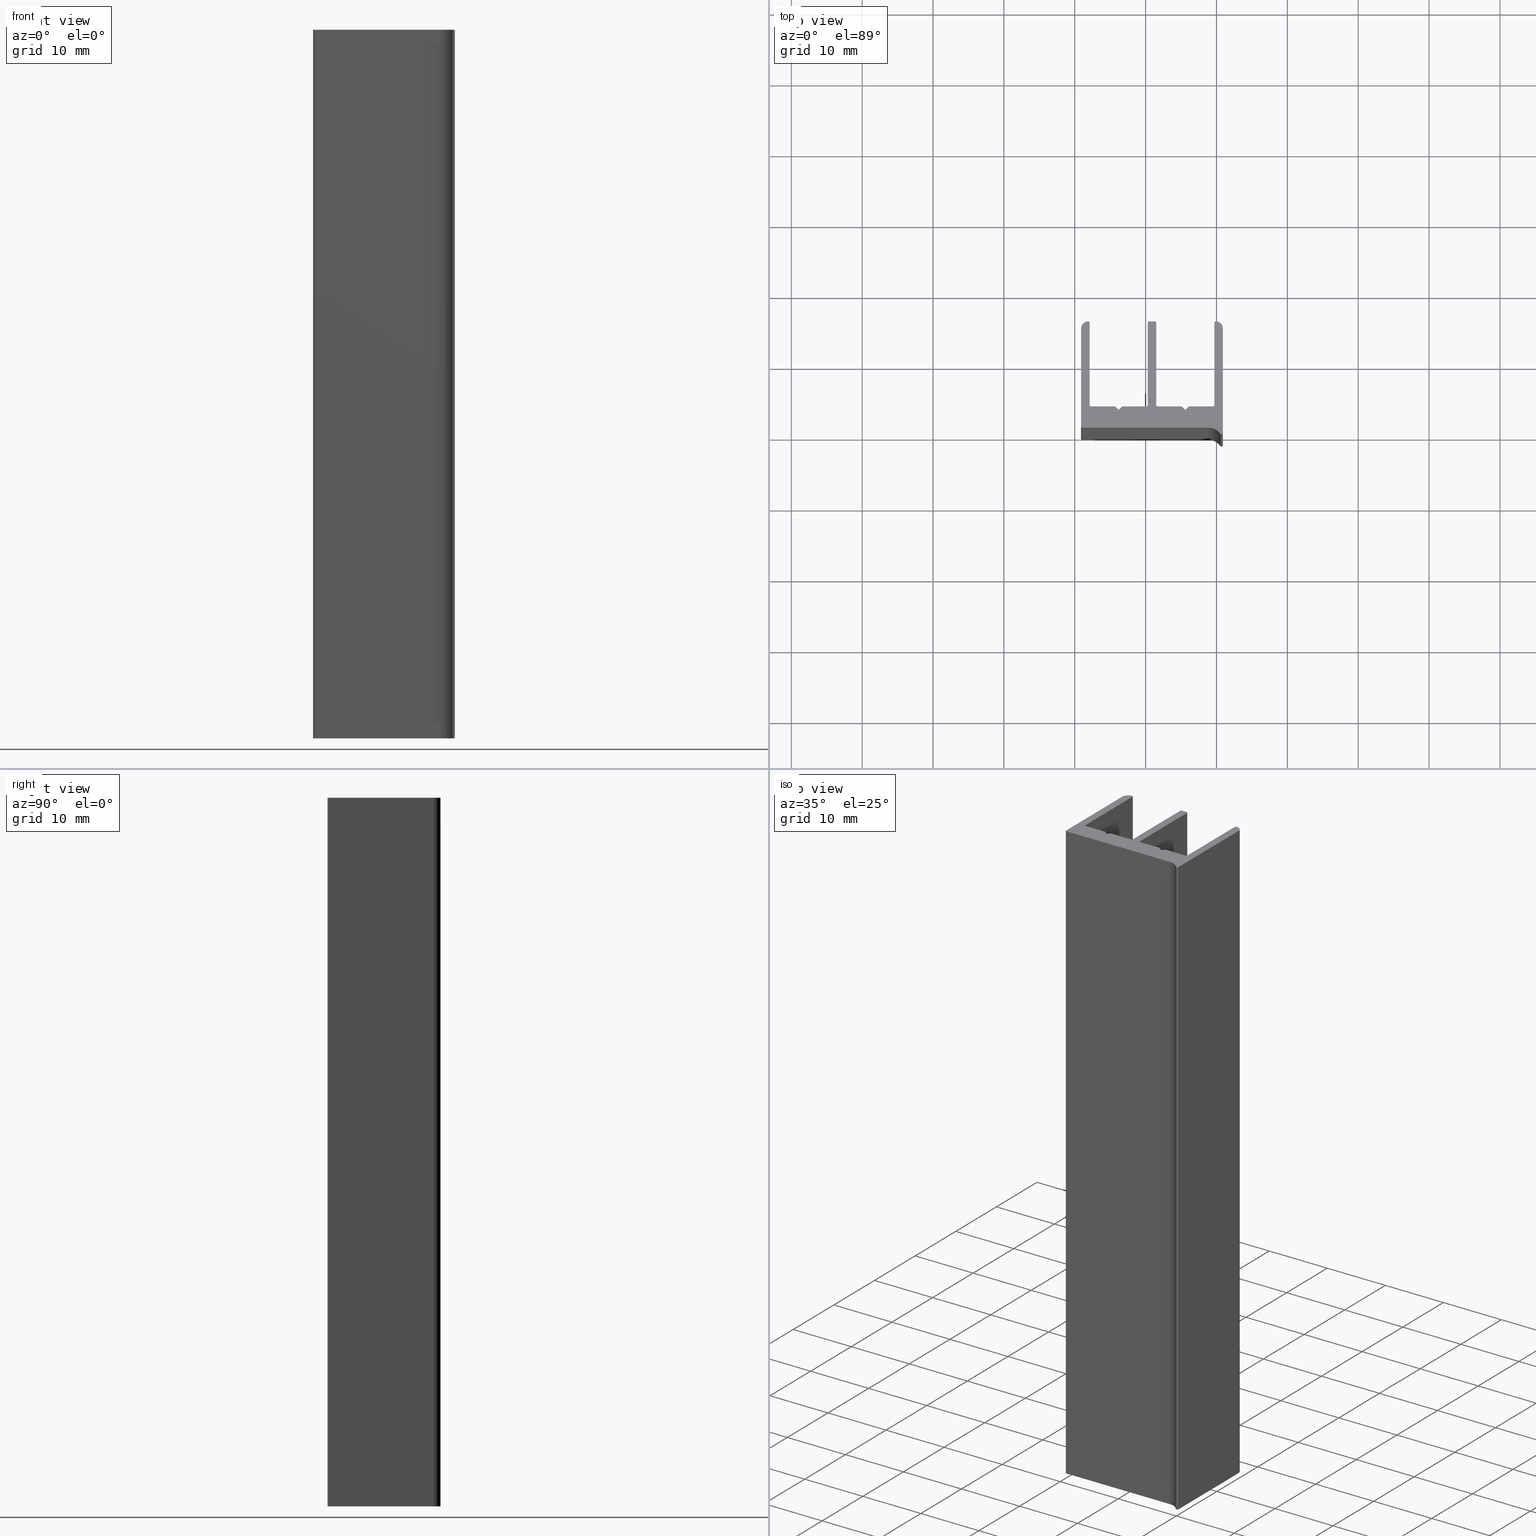
[diagram: canonical four-view strip — front | top / right | iso, engineering-drawing reading convention]
A machine part, canonical four-view strip (front | top / right | iso — engineering-drawing reading convention). The complete STEP part file that produces these views, byte-faithful:
ISO-10303-21;
HEADER;
/****************************************************************
 * Generated by software with PDE/Lib inside                    *
 * PDElib Version v4.4, created Mon 02/23/2004                  *
 * International Technegroup Inc. (www.iti-oh.com)              *
 ****************************************************************/
FILE_DESCRIPTION(('STEP AP203'),'2;1');
FILE_NAME('XB26521.stp','2011-03-21T16:29:15',(''),(''),'2009.3.110','THINKDESIGN','');
FILE_SCHEMA(('CONFIG_CONTROL_DESIGN'));
ENDSEC;
DATA;
#2=CARTESIAN_POINT('',(9.899999999999864,14.800000000000068,-100.0));
#3=DIRECTION('',(0.0,0.0,1.0));
#4=DIRECTION('',(1.0,0.0,0.0));
#5=AXIS2_PLACEMENT_3D('',#2,#3,#4);
#6=CYLINDRICAL_SURFACE('',#5,0.200000000000000);
#7=CARTESIAN_POINT('',(9.899999999999864,15.000000000000114,-100.0));
#8=VERTEX_POINT('',#7);
#9=CARTESIAN_POINT('',(9.699999999999818,14.800000000000068,-100.0));
#10=VERTEX_POINT('',#9);
#11=CARTESIAN_POINT('',(9.899999999999864,14.800000000000068,-100.0));
#12=DIRECTION('',(0.0,0.0,1.0));
#13=DIRECTION('',(1.0,0.0,0.0));
#14=AXIS2_PLACEMENT_3D('',#11,#12,#13);
#15=CIRCLE('',#14,0.200000000000000);
#16=EDGE_CURVE('',#8,#10,#15,.T.);
#17=ORIENTED_EDGE('',*,*,#16,.T.);
#18=CARTESIAN_POINT('',(9.699999999999818,14.800000000000068,0.0));
#19=VERTEX_POINT('',#18);
#20=CARTESIAN_POINT('',(9.699999999999818,14.800000000000068,-100.0));
#21=DIRECTION('',(0.0,0.0,1.0));
#22=VECTOR('',#21,100.0);
#23=LINE('',#20,#22);
#24=EDGE_CURVE('',#10,#19,#23,.T.);
#25=ORIENTED_EDGE('',*,*,#24,.T.);
#26=CARTESIAN_POINT('',(9.899999999999864,15.000000000000114,0.0));
#27=VERTEX_POINT('',#26);
#28=CARTESIAN_POINT('',(9.899999999999864,14.800000000000068,0.0));
#29=DIRECTION('',(0.0,0.0,1.0));
#30=DIRECTION('',(1.0,0.0,0.0));
#31=AXIS2_PLACEMENT_3D('',#28,#29,#30);
#32=CIRCLE('',#31,0.200000000000000);
#33=EDGE_CURVE('',#27,#19,#32,.T.);
#34=ORIENTED_EDGE('',*,*,#33,.F.);
#35=CARTESIAN_POINT('',(9.899999999999864,15.000000000000114,-100.0));
#36=DIRECTION('',(0.0,0.0,1.0));
#37=VECTOR('',#36,100.0);
#38=LINE('',#35,#37);
#39=EDGE_CURVE('',#8,#27,#38,.T.);
#40=ORIENTED_EDGE('',*,*,#39,.F.);
#41=EDGE_LOOP('',(#17,#25,#34,#40));
#42=FACE_OUTER_BOUND('',#41,.T.);
#43=ADVANCED_FACE('',(#42),#6,.T.);
#44=CARTESIAN_POINT('',(9.699999999999818,14.800000000000068,-100.0));
#45=DIRECTION('',(-1.0,0.0,0.0));
#46=DIRECTION('',(0.0,-1.0,0.0));
#47=AXIS2_PLACEMENT_3D('',#44,#45,#46);
#48=PLANE('',#47);
#49=CARTESIAN_POINT('',(9.699999999999818,3.200000000000046,-100.0));
#50=VERTEX_POINT('',#49);
#51=CARTESIAN_POINT('',(9.699999999999818,14.800000000000068,-100.0));
#52=DIRECTION('',(0.0,-1.0,0.0));
#53=VECTOR('',#52,11.599999999999909);
#54=LINE('',#51,#53);
#55=EDGE_CURVE('',#10,#50,#54,.T.);
#56=ORIENTED_EDGE('',*,*,#55,.T.);
#57=CARTESIAN_POINT('',(9.699999999999818,3.200000000000046,0.0));
#58=VERTEX_POINT('',#57);
#59=CARTESIAN_POINT('',(9.699999999999818,3.200000000000046,-100.0));
#60=DIRECTION('',(0.0,0.0,1.0));
#61=VECTOR('',#60,100.0);
#62=LINE('',#59,#61);
#63=EDGE_CURVE('',#50,#58,#62,.T.);
#64=ORIENTED_EDGE('',*,*,#63,.T.);
#65=CARTESIAN_POINT('',(9.699999999999818,14.800000000000068,0.0));
#66=DIRECTION('',(0.0,-1.0,0.0));
#67=VECTOR('',#66,11.599999999999909);
#68=LINE('',#65,#67);
#69=EDGE_CURVE('',#19,#58,#68,.T.);
#70=ORIENTED_EDGE('',*,*,#69,.F.);
#71=ORIENTED_EDGE('',*,*,#24,.F.);
#72=EDGE_LOOP('',(#56,#64,#70,#71));
#73=FACE_OUTER_BOUND('',#72,.T.);
#74=ADVANCED_FACE('',(#73),#48,.T.);
#75=CARTESIAN_POINT('',(9.499999999999773,3.200000000000046,-100.0));
#76=DIRECTION('',(0.0,0.0,-1.0));
#77=DIRECTION('',(1.0,0.0,0.0));
#78=AXIS2_PLACEMENT_3D('',#75,#76,#77);
#79=CYLINDRICAL_SURFACE('',#78,0.200000000000000);
#80=CARTESIAN_POINT('',(9.499999999999773,3.000000000000114,-100.0));
#81=VERTEX_POINT('',#80);
#82=CARTESIAN_POINT('',(9.499999999999773,3.200000000000046,-100.0));
#83=DIRECTION('',(0.0,0.0,-1.0));
#84=DIRECTION('',(1.0,0.0,0.0));
#85=AXIS2_PLACEMENT_3D('',#82,#83,#84);
#86=CIRCLE('',#85,0.200000000000000);
#87=EDGE_CURVE('',#50,#81,#86,.T.);
#88=ORIENTED_EDGE('',*,*,#87,.T.);
#89=CARTESIAN_POINT('',(9.499999999999773,3.000000000000114,0.0));
#90=VERTEX_POINT('',#89);
#91=CARTESIAN_POINT('',(9.499999999999773,3.000000000000114,-100.0));
#92=DIRECTION('',(0.0,0.0,1.0));
#93=VECTOR('',#92,100.0);
#94=LINE('',#91,#93);
#95=EDGE_CURVE('',#81,#90,#94,.T.);
#96=ORIENTED_EDGE('',*,*,#95,.T.);
#97=CARTESIAN_POINT('',(9.499999999999773,3.200000000000046,0.0));
#98=DIRECTION('',(0.0,0.0,-1.0));
#99=DIRECTION('',(1.0,0.0,0.0));
#100=AXIS2_PLACEMENT_3D('',#97,#98,#99);
#101=CIRCLE('',#100,0.200000000000000);
#102=EDGE_CURVE('',#58,#90,#101,.T.);
#103=ORIENTED_EDGE('',*,*,#102,.F.);
#104=ORIENTED_EDGE('',*,*,#63,.F.);
#105=EDGE_LOOP('',(#88,#96,#103,#104));
#106=FACE_OUTER_BOUND('',#105,.T.);
#107=ADVANCED_FACE('',(#106),#79,.F.);
#108=CARTESIAN_POINT('',(9.499999999999773,3.000000000000114,-100.0));
#109=DIRECTION('',(0.0,1.0,0.0));
#110=DIRECTION('',(-1.0,0.0,0.0));
#111=AXIS2_PLACEMENT_3D('',#108,#109,#110);
#112=PLANE('',#111);
#113=CARTESIAN_POINT('',(6.099999999999909,3.0,-100.0));
#114=VERTEX_POINT('',#113);
#115=CARTESIAN_POINT('',(9.499999999999773,3.000000000000114,-100.0));
#116=DIRECTION('',(-1.0,0.0,0.0));
#117=VECTOR('',#116,3.399999999999864);
#118=LINE('',#115,#117);
#119=EDGE_CURVE('',#81,#114,#118,.T.);
#120=ORIENTED_EDGE('',*,*,#119,.T.);
#121=CARTESIAN_POINT('',(6.099999999999909,3.0,0.0));
#122=VERTEX_POINT('',#121);
#123=CARTESIAN_POINT('',(6.099999999999909,3.0,-100.0));
#124=DIRECTION('',(0.0,0.0,1.0));
#125=VECTOR('',#124,100.0);
#126=LINE('',#123,#125);
#127=EDGE_CURVE('',#114,#122,#126,.T.);
#128=ORIENTED_EDGE('',*,*,#127,.T.);
#129=CARTESIAN_POINT('',(9.499999999999773,3.000000000000114,0.0));
#130=DIRECTION('',(-1.0,0.0,0.0));
#131=VECTOR('',#130,3.399999999999864);
#132=LINE('',#129,#131);
#133=EDGE_CURVE('',#90,#122,#132,.T.);
#134=ORIENTED_EDGE('',*,*,#133,.F.);
#135=ORIENTED_EDGE('',*,*,#95,.F.);
#136=EDGE_LOOP('',(#120,#128,#134,#135));
#137=FACE_OUTER_BOUND('',#136,.T.);
#138=ADVANCED_FACE('',(#137),#112,.T.);
#139=CARTESIAN_POINT('',(6.099999999999909,3.0,-100.0));
#140=DIRECTION('',(-0.707106781186467,0.707106781186628,0.0));
#141=DIRECTION('',(-0.707106781186628,-0.707106781186467,0.0));
#142=AXIS2_PLACEMENT_3D('',#139,#140,#141);
#143=PLANE('',#142);
#144=CARTESIAN_POINT('',(5.599999999999909,2.500000000000114,-100.0));
#145=VERTEX_POINT('',#144);
#146=CARTESIAN_POINT('',(6.099999999999909,3.0,-100.0));
#147=DIRECTION('',(-0.707106781186628,-0.707106781186467,0.0));
#148=VECTOR('',#147,0.707106781186467);
#149=LINE('',#146,#148);
#150=EDGE_CURVE('',#114,#145,#149,.T.);
#151=ORIENTED_EDGE('',*,*,#150,.T.);
#152=CARTESIAN_POINT('',(5.599999999999909,2.500000000000114,0.0));
#153=VERTEX_POINT('',#152);
#154=CARTESIAN_POINT('',(5.599999999999909,2.500000000000114,-100.0));
#155=DIRECTION('',(0.0,0.0,1.0));
#156=VECTOR('',#155,100.0);
#157=LINE('',#154,#156);
#158=EDGE_CURVE('',#145,#153,#157,.T.);
#159=ORIENTED_EDGE('',*,*,#158,.T.);
#160=CARTESIAN_POINT('',(6.099999999999909,3.0,0.0));
#161=DIRECTION('',(-0.707106781186628,-0.707106781186467,0.0));
#162=VECTOR('',#161,0.707106781186467);
#163=LINE('',#160,#162);
#164=EDGE_CURVE('',#122,#153,#163,.T.);
#165=ORIENTED_EDGE('',*,*,#164,.F.);
#166=ORIENTED_EDGE('',*,*,#127,.F.);
#167=EDGE_LOOP('',(#151,#159,#165,#166));
#168=FACE_OUTER_BOUND('',#167,.T.);
#169=ADVANCED_FACE('',(#168),#143,.T.);
#170=CARTESIAN_POINT('',(5.599999999999909,2.500000000000114,-100.0));
#171=DIRECTION('',(0.707106781186467,0.707106781186628,0.0));
#172=DIRECTION('',(-0.707106781186628,0.707106781186467,0.0));
#173=AXIS2_PLACEMENT_3D('',#170,#171,#172);
#174=PLANE('',#173);
#175=CARTESIAN_POINT('',(5.099999999999909,3.0,-100.0));
#176=VERTEX_POINT('',#175);
#177=CARTESIAN_POINT('',(5.599999999999909,2.500000000000114,-100.0));
#178=DIRECTION('',(-0.707106781186628,0.707106781186467,0.0));
#179=VECTOR('',#178,0.707106781186467);
#180=LINE('',#177,#179);
#181=EDGE_CURVE('',#145,#176,#180,.T.);
#182=ORIENTED_EDGE('',*,*,#181,.T.);
#183=CARTESIAN_POINT('',(5.099999999999909,3.0,0.0));
#184=VERTEX_POINT('',#183);
#185=CARTESIAN_POINT('',(5.099999999999909,3.0,-100.0));
#186=DIRECTION('',(0.0,0.0,1.0));
#187=VECTOR('',#186,100.0);
#188=LINE('',#185,#187);
#189=EDGE_CURVE('',#176,#184,#188,.T.);
#190=ORIENTED_EDGE('',*,*,#189,.T.);
#191=CARTESIAN_POINT('',(5.599999999999909,2.500000000000114,0.0));
#192=DIRECTION('',(-0.707106781186628,0.707106781186467,0.0));
#193=VECTOR('',#192,0.707106781186467);
#194=LINE('',#191,#193);
#195=EDGE_CURVE('',#153,#184,#194,.T.);
#196=ORIENTED_EDGE('',*,*,#195,.F.);
#197=ORIENTED_EDGE('',*,*,#158,.F.);
#198=EDGE_LOOP('',(#182,#190,#196,#197));
#199=FACE_OUTER_BOUND('',#198,.T.);
#200=ADVANCED_FACE('',(#199),#174,.T.);
#201=CARTESIAN_POINT('',(5.099999999999909,3.0,-100.0));
#202=DIRECTION('',(0.0,1.0,0.0));
#203=DIRECTION('',(-1.0,0.0,0.0));
#204=AXIS2_PLACEMENT_3D('',#201,#202,#203);
#205=PLANE('',#204);
#206=CARTESIAN_POINT('',(1.699999999999818,3.0,-100.0));
#207=VERTEX_POINT('',#206);
#208=CARTESIAN_POINT('',(5.099999999999909,3.0,-100.0));
#209=DIRECTION('',(-1.0,0.0,0.0));
#210=VECTOR('',#209,3.400000000000091);
#211=LINE('',#208,#210);
#212=EDGE_CURVE('',#176,#207,#211,.T.);
#213=ORIENTED_EDGE('',*,*,#212,.T.);
#214=CARTESIAN_POINT('',(1.699999999999818,3.0,0.0));
#215=VERTEX_POINT('',#214);
#216=CARTESIAN_POINT('',(1.699999999999818,3.0,-100.0));
#217=DIRECTION('',(0.0,0.0,1.0));
#218=VECTOR('',#217,100.0);
#219=LINE('',#216,#218);
#220=EDGE_CURVE('',#207,#215,#219,.T.);
#221=ORIENTED_EDGE('',*,*,#220,.T.);
#222=CARTESIAN_POINT('',(5.099999999999909,3.0,0.0));
#223=DIRECTION('',(-1.0,0.0,0.0));
#224=VECTOR('',#223,3.400000000000091);
#225=LINE('',#222,#224);
#226=EDGE_CURVE('',#184,#215,#225,.T.);
#227=ORIENTED_EDGE('',*,*,#226,.F.);
#228=ORIENTED_EDGE('',*,*,#189,.F.);
#229=EDGE_LOOP('',(#213,#221,#227,#228));
#230=FACE_OUTER_BOUND('',#229,.T.);
#231=ADVANCED_FACE('',(#230),#205,.T.);
#232=CARTESIAN_POINT('',(1.699999999999818,3.200000000000046,-100.0));
#233=DIRECTION('',(0.0,0.0,-1.0));
#234=DIRECTION('',(-1.960054E-015,-1.0,0.0));
#235=AXIS2_PLACEMENT_3D('',#232,#233,#234);
#236=CYLINDRICAL_SURFACE('',#235,0.200000000000000);
#237=CARTESIAN_POINT('',(1.499999999999773,3.200000000000046,-100.0));
#238=VERTEX_POINT('',#237);
#239=CARTESIAN_POINT('',(1.699999999999818,3.200000000000046,-100.0));
#240=DIRECTION('',(0.0,0.0,-1.0));
#241=DIRECTION('',(1.0,0.0,0.0));
#242=AXIS2_PLACEMENT_3D('',#239,#240,#241);
#243=CIRCLE('',#242,0.200000000000000);
#244=EDGE_CURVE('',#207,#238,#243,.T.);
#245=ORIENTED_EDGE('',*,*,#244,.T.);
#246=CARTESIAN_POINT('',(1.499999999999773,3.200000000000046,0.0));
#247=VERTEX_POINT('',#246);
#248=CARTESIAN_POINT('',(1.499999999999773,3.200000000000046,-100.0));
#249=DIRECTION('',(0.0,0.0,1.0));
#250=VECTOR('',#249,100.0);
#251=LINE('',#248,#250);
#252=EDGE_CURVE('',#238,#247,#251,.T.);
#253=ORIENTED_EDGE('',*,*,#252,.T.);
#254=CARTESIAN_POINT('',(1.699999999999818,3.200000000000046,0.0));
#255=DIRECTION('',(0.0,0.0,-1.0));
#256=DIRECTION('',(1.0,0.0,0.0));
#257=AXIS2_PLACEMENT_3D('',#254,#255,#256);
#258=CIRCLE('',#257,0.200000000000000);
#259=EDGE_CURVE('',#215,#247,#258,.T.);
#260=ORIENTED_EDGE('',*,*,#259,.F.);
#261=ORIENTED_EDGE('',*,*,#220,.F.);
#262=EDGE_LOOP('',(#245,#253,#260,#261));
#263=FACE_OUTER_BOUND('',#262,.T.);
#264=ADVANCED_FACE('',(#263),#236,.F.);
#265=CARTESIAN_POINT('',(1.499999999999773,3.200000000000046,-100.0));
#266=DIRECTION('',(1.0,0.0,0.0));
#267=DIRECTION('',(0.0,1.0,0.0));
#268=AXIS2_PLACEMENT_3D('',#265,#266,#267);
#269=PLANE('',#268);
#270=CARTESIAN_POINT('',(1.500000000000000,14.800000000000182,-100.0));
#271=VERTEX_POINT('',#270);
#272=CARTESIAN_POINT('',(1.499999999999773,3.200000000000046,-100.0));
#273=DIRECTION('',(0.0,1.0,0.0));
#274=VECTOR('',#273,11.600000000000136);
#275=LINE('',#272,#274);
#276=EDGE_CURVE('',#238,#271,#275,.T.);
#277=ORIENTED_EDGE('',*,*,#276,.T.);
#278=CARTESIAN_POINT('',(1.500000000000000,14.800000000000182,0.0));
#279=VERTEX_POINT('',#278);
#280=CARTESIAN_POINT('',(1.500000000000000,14.800000000000182,-100.0));
#281=DIRECTION('',(0.0,0.0,1.0));
#282=VECTOR('',#281,100.0);
#283=LINE('',#280,#282);
#284=EDGE_CURVE('',#271,#279,#283,.T.);
#285=ORIENTED_EDGE('',*,*,#284,.T.);
#286=CARTESIAN_POINT('',(1.499999999999773,3.200000000000046,0.0));
#287=DIRECTION('',(0.0,1.0,0.0));
#288=VECTOR('',#287,11.600000000000136);
#289=LINE('',#286,#288);
#290=EDGE_CURVE('',#247,#279,#289,.T.);
#291=ORIENTED_EDGE('',*,*,#290,.F.);
#292=ORIENTED_EDGE('',*,*,#252,.F.);
#293=EDGE_LOOP('',(#277,#285,#291,#292));
#294=FACE_OUTER_BOUND('',#293,.T.);
#295=ADVANCED_FACE('',(#294),#269,.T.);
#296=CARTESIAN_POINT('',(1.299999999999955,14.800000000000182,-100.0));
#297=DIRECTION('',(0.0,0.0,1.0));
#298=DIRECTION('',(1.0,0.0,0.0));
#299=AXIS2_PLACEMENT_3D('',#296,#297,#298);
#300=CYLINDRICAL_SURFACE('',#299,0.200000000000000);
#301=CARTESIAN_POINT('',(1.299999999999955,15.000000000000341,-100.0));
#302=VERTEX_POINT('',#301);
#303=CARTESIAN_POINT('',(1.299999999999955,14.800000000000182,-100.0));
#304=DIRECTION('',(0.0,0.0,1.0));
#305=DIRECTION('',(1.0,0.0,0.0));
#306=AXIS2_PLACEMENT_3D('',#303,#304,#305);
#307=CIRCLE('',#306,0.200000000000000);
#308=EDGE_CURVE('',#271,#302,#307,.T.);
#309=ORIENTED_EDGE('',*,*,#308,.T.);
#310=CARTESIAN_POINT('',(1.299999999999955,15.000000000000341,0.0));
#311=VERTEX_POINT('',#310);
#312=CARTESIAN_POINT('',(1.299999999999955,15.000000000000341,-100.0));
#313=DIRECTION('',(0.0,0.0,1.0));
#314=VECTOR('',#313,100.0);
#315=LINE('',#312,#314);
#316=EDGE_CURVE('',#302,#311,#315,.T.);
#317=ORIENTED_EDGE('',*,*,#316,.T.);
#318=CARTESIAN_POINT('',(1.299999999999955,14.800000000000182,0.0));
#319=DIRECTION('',(0.0,0.0,1.0));
#320=DIRECTION('',(1.0,0.0,0.0));
#321=AXIS2_PLACEMENT_3D('',#318,#319,#320);
#322=CIRCLE('',#321,0.200000000000000);
#323=EDGE_CURVE('',#279,#311,#322,.T.);
#324=ORIENTED_EDGE('',*,*,#323,.F.);
#325=ORIENTED_EDGE('',*,*,#284,.F.);
#326=EDGE_LOOP('',(#309,#317,#324,#325));
#327=FACE_OUTER_BOUND('',#326,.T.);
#328=ADVANCED_FACE('',(#327),#300,.T.);
#329=CARTESIAN_POINT('',(1.299999999999955,15.000000000000341,-100.0));
#330=DIRECTION('',(-2.842171E-013,1.0,0.0));
#331=DIRECTION('',(-1.0,-2.842171E-013,0.0));
#332=AXIS2_PLACEMENT_3D('',#329,#330,#331);
#333=PLANE('',#332);
#334=CARTESIAN_POINT('',(0.499999999999773,15.0,-100.0));
#335=VERTEX_POINT('',#334);
#336=CARTESIAN_POINT('',(1.299999999999955,15.000000000000341,-100.0));
#337=DIRECTION('',(-1.0,-2.842171E-013,0.0));
#338=VECTOR('',#337,0.800000000000182);
#339=LINE('',#336,#338);
#340=EDGE_CURVE('',#302,#335,#339,.T.);
#341=ORIENTED_EDGE('',*,*,#340,.T.);
#342=CARTESIAN_POINT('',(0.499999999999773,15.0,0.0));
#343=VERTEX_POINT('',#342);
#344=CARTESIAN_POINT('',(0.499999999999773,15.0,-100.0));
#345=DIRECTION('',(0.0,0.0,1.0));
#346=VECTOR('',#345,100.0);
#347=LINE('',#344,#346);
#348=EDGE_CURVE('',#335,#343,#347,.T.);
#349=ORIENTED_EDGE('',*,*,#348,.T.);
#350=CARTESIAN_POINT('',(1.299999999999955,15.000000000000341,0.0));
#351=DIRECTION('',(-1.0,-2.842171E-013,0.0));
#352=VECTOR('',#351,0.800000000000182);
#353=LINE('',#350,#352);
#354=EDGE_CURVE('',#311,#343,#353,.T.);
#355=ORIENTED_EDGE('',*,*,#354,.F.);
#356=ORIENTED_EDGE('',*,*,#316,.F.);
#357=EDGE_LOOP('',(#341,#349,#355,#356));
#358=FACE_OUTER_BOUND('',#357,.T.);
#359=ADVANCED_FACE('',(#358),#333,.T.);
#360=CARTESIAN_POINT('',(0.499999999999773,14.799999999999955,-100.0));
#361=DIRECTION('',(0.0,0.0,1.0));
#362=DIRECTION('',(1.0,0.0,0.0));
#363=AXIS2_PLACEMENT_3D('',#360,#361,#362);
#364=CYLINDRICAL_SURFACE('',#363,0.200000000000000);
#365=CARTESIAN_POINT('',(0.299999999999955,14.799999999999955,-100.0));
#366=VERTEX_POINT('',#365);
#367=CARTESIAN_POINT('',(0.499999999999773,14.799999999999955,-100.0));
#368=DIRECTION('',(0.0,0.0,1.0));
#369=DIRECTION('',(1.0,0.0,0.0));
#370=AXIS2_PLACEMENT_3D('',#367,#368,#369);
#371=CIRCLE('',#370,0.200000000000000);
#372=EDGE_CURVE('',#335,#366,#371,.T.);
#373=ORIENTED_EDGE('',*,*,#372,.T.);
#374=CARTESIAN_POINT('',(0.299999999999955,14.799999999999955,0.0));
#375=VERTEX_POINT('',#374);
#376=CARTESIAN_POINT('',(0.299999999999955,14.799999999999955,-100.0));
#377=DIRECTION('',(0.0,0.0,1.0));
#378=VECTOR('',#377,100.0);
#379=LINE('',#376,#378);
#380=EDGE_CURVE('',#366,#375,#379,.T.);
#381=ORIENTED_EDGE('',*,*,#380,.T.);
#382=CARTESIAN_POINT('',(0.499999999999773,14.799999999999955,0.0));
#383=DIRECTION('',(0.0,0.0,1.0));
#384=DIRECTION('',(1.0,0.0,0.0));
#385=AXIS2_PLACEMENT_3D('',#382,#383,#384);
#386=CIRCLE('',#385,0.200000000000000);
#387=EDGE_CURVE('',#343,#375,#386,.T.);
#388=ORIENTED_EDGE('',*,*,#387,.F.);
#389=ORIENTED_EDGE('',*,*,#348,.F.);
#390=EDGE_LOOP('',(#373,#381,#388,#389));
#391=FACE_OUTER_BOUND('',#390,.T.);
#392=ADVANCED_FACE('',(#391),#364,.T.);
#393=CARTESIAN_POINT('',(0.299999999999955,14.799999999999955,-100.0));
#394=DIRECTION('',(-1.0,0.0,0.0));
#395=DIRECTION('',(0.0,-1.0,0.0));
#396=AXIS2_PLACEMENT_3D('',#393,#394,#395);
#397=PLANE('',#396);
#398=CARTESIAN_POINT('',(0.299999999999955,3.200000000000046,-100.0));
#399=VERTEX_POINT('',#398);
#400=CARTESIAN_POINT('',(0.299999999999955,14.799999999999955,-100.0));
#401=DIRECTION('',(0.0,-1.0,0.0));
#402=VECTOR('',#401,11.599999999999909);
#403=LINE('',#400,#402);
#404=EDGE_CURVE('',#366,#399,#403,.T.);
#405=ORIENTED_EDGE('',*,*,#404,.T.);
#406=CARTESIAN_POINT('',(0.299999999999955,3.200000000000046,0.0));
#407=VERTEX_POINT('',#406);
#408=CARTESIAN_POINT('',(0.299999999999955,3.200000000000046,-100.0));
#409=DIRECTION('',(0.0,0.0,1.0));
#410=VECTOR('',#409,100.0);
#411=LINE('',#408,#410);
#412=EDGE_CURVE('',#399,#407,#411,.T.);
#413=ORIENTED_EDGE('',*,*,#412,.T.);
#414=CARTESIAN_POINT('',(0.299999999999955,14.799999999999955,0.0));
#415=DIRECTION('',(0.0,-1.0,0.0));
#416=VECTOR('',#415,11.599999999999909);
#417=LINE('',#414,#416);
#418=EDGE_CURVE('',#375,#407,#417,.T.);
#419=ORIENTED_EDGE('',*,*,#418,.F.);
#420=ORIENTED_EDGE('',*,*,#380,.F.);
#421=EDGE_LOOP('',(#405,#413,#419,#420));
#422=FACE_OUTER_BOUND('',#421,.T.);
#423=ADVANCED_FACE('',(#422),#397,.T.);
#424=CARTESIAN_POINT('',(0.099999999999909,3.200000000000046,-100.0));
#425=DIRECTION('',(0.0,0.0,-1.0));
#426=DIRECTION('',(1.0,0.0,0.0));
#427=AXIS2_PLACEMENT_3D('',#424,#425,#426);
#428=CYLINDRICAL_SURFACE('',#427,0.200000000000000);
#429=CARTESIAN_POINT('',(0.099999999999909,3.000000000000227,-100.0));
#430=VERTEX_POINT('',#429);
#431=CARTESIAN_POINT('',(0.099999999999909,3.200000000000046,-100.0));
#432=DIRECTION('',(0.0,0.0,-1.0));
#433=DIRECTION('',(1.0,0.0,0.0));
#434=AXIS2_PLACEMENT_3D('',#431,#432,#433);
#435=CIRCLE('',#434,0.200000000000000);
#436=EDGE_CURVE('',#399,#430,#435,.T.);
#437=ORIENTED_EDGE('',*,*,#436,.T.);
#438=CARTESIAN_POINT('',(0.099999999999909,3.000000000000227,0.0));
#439=VERTEX_POINT('',#438);
#440=CARTESIAN_POINT('',(0.099999999999909,3.000000000000227,-100.0));
#441=DIRECTION('',(0.0,0.0,1.0));
#442=VECTOR('',#441,100.0);
#443=LINE('',#440,#442);
#444=EDGE_CURVE('',#430,#439,#443,.T.);
#445=ORIENTED_EDGE('',*,*,#444,.T.);
#446=CARTESIAN_POINT('',(0.099999999999909,3.200000000000046,0.0));
#447=DIRECTION('',(0.0,0.0,-1.0));
#448=DIRECTION('',(1.0,0.0,0.0));
#449=AXIS2_PLACEMENT_3D('',#446,#447,#448);
#450=CIRCLE('',#449,0.200000000000000);
#451=EDGE_CURVE('',#407,#439,#450,.T.);
#452=ORIENTED_EDGE('',*,*,#451,.F.);
#453=ORIENTED_EDGE('',*,*,#412,.F.);
#454=EDGE_LOOP('',(#437,#445,#452,#453));
#455=FACE_OUTER_BOUND('',#454,.T.);
#456=ADVANCED_FACE('',(#455),#428,.F.);
#457=CARTESIAN_POINT('',(0.099999999999909,3.000000000000227,-100.0));
#458=DIRECTION('',(0.0,1.0,0.0));
#459=DIRECTION('',(-1.0,0.0,0.0));
#460=AXIS2_PLACEMENT_3D('',#457,#458,#459);
#461=PLANE('',#460);
#462=CARTESIAN_POINT('',(-3.300000000000182,3.000000000000114,-100.0));
#463=VERTEX_POINT('',#462);
#464=CARTESIAN_POINT('',(0.099999999999909,3.000000000000227,-100.0));
#465=DIRECTION('',(-1.0,0.0,0.0));
#466=VECTOR('',#465,3.400000000000091);
#467=LINE('',#464,#466);
#468=EDGE_CURVE('',#430,#463,#467,.T.);
#469=ORIENTED_EDGE('',*,*,#468,.T.);
#470=CARTESIAN_POINT('',(-3.300000000000182,3.000000000000114,0.0));
#471=VERTEX_POINT('',#470);
#472=CARTESIAN_POINT('',(-3.300000000000182,3.000000000000114,-100.0));
#473=DIRECTION('',(0.0,0.0,1.0));
#474=VECTOR('',#473,100.0);
#475=LINE('',#472,#474);
#476=EDGE_CURVE('',#463,#471,#475,.T.);
#477=ORIENTED_EDGE('',*,*,#476,.T.);
#478=CARTESIAN_POINT('',(0.099999999999909,3.000000000000227,0.0));
#479=DIRECTION('',(-1.0,0.0,0.0));
#480=VECTOR('',#479,3.400000000000091);
#481=LINE('',#478,#480);
#482=EDGE_CURVE('',#439,#471,#481,.T.);
#483=ORIENTED_EDGE('',*,*,#482,.F.);
#484=ORIENTED_EDGE('',*,*,#444,.F.);
#485=EDGE_LOOP('',(#469,#477,#483,#484));
#486=FACE_OUTER_BOUND('',#485,.T.);
#487=ADVANCED_FACE('',(#486),#461,.T.);
#488=CARTESIAN_POINT('',(-3.300000000000182,3.000000000000114,-100.0));
#489=DIRECTION('',(-0.707106781186467,0.707106781186628,0.0));
#490=DIRECTION('',(-0.707106781186628,-0.707106781186467,0.0));
#491=AXIS2_PLACEMENT_3D('',#488,#489,#490);
#492=PLANE('',#491);
#493=CARTESIAN_POINT('',(-3.800000000000182,2.500000000000227,-100.0));
#494=VERTEX_POINT('',#493);
#495=CARTESIAN_POINT('',(-3.300000000000182,3.000000000000114,-100.0));
#496=DIRECTION('',(-0.707106781186628,-0.707106781186467,0.0));
#497=VECTOR('',#496,0.707106781186467);
#498=LINE('',#495,#497);
#499=EDGE_CURVE('',#463,#494,#498,.T.);
#500=ORIENTED_EDGE('',*,*,#499,.T.);
#501=CARTESIAN_POINT('',(-3.800000000000182,2.500000000000227,0.0));
#502=VERTEX_POINT('',#501);
#503=CARTESIAN_POINT('',(-3.800000000000182,2.500000000000227,-100.0));
#504=DIRECTION('',(0.0,0.0,1.0));
#505=VECTOR('',#504,100.0);
#506=LINE('',#503,#505);
#507=EDGE_CURVE('',#494,#502,#506,.T.);
#508=ORIENTED_EDGE('',*,*,#507,.T.);
#509=CARTESIAN_POINT('',(-3.300000000000182,3.000000000000114,0.0));
#510=DIRECTION('',(-0.707106781186628,-0.707106781186467,0.0));
#511=VECTOR('',#510,0.707106781186467);
#512=LINE('',#509,#511);
#513=EDGE_CURVE('',#471,#502,#512,.T.);
#514=ORIENTED_EDGE('',*,*,#513,.F.);
#515=ORIENTED_EDGE('',*,*,#476,.F.);
#516=EDGE_LOOP('',(#500,#508,#514,#515));
#517=FACE_OUTER_BOUND('',#516,.T.);
#518=ADVANCED_FACE('',(#517),#492,.T.);
#519=CARTESIAN_POINT('',(-3.800000000000182,2.500000000000227,-100.0));
#520=DIRECTION('',(0.707106781186467,0.707106781186628,0.0));
#521=DIRECTION('',(-0.707106781186628,0.707106781186467,0.0));
#522=AXIS2_PLACEMENT_3D('',#519,#520,#521);
#523=PLANE('',#522);
#524=CARTESIAN_POINT('',(-4.300000000000182,3.000000000000114,-100.0));
#525=VERTEX_POINT('',#524);
#526=CARTESIAN_POINT('',(-3.800000000000182,2.500000000000227,-100.0));
#527=DIRECTION('',(-0.707106781186628,0.707106781186467,0.0));
#528=VECTOR('',#527,0.707106781186467);
#529=LINE('',#526,#528);
#530=EDGE_CURVE('',#494,#525,#529,.T.);
#531=ORIENTED_EDGE('',*,*,#530,.T.);
#532=CARTESIAN_POINT('',(-4.300000000000182,3.000000000000114,0.0));
#533=VERTEX_POINT('',#532);
#534=CARTESIAN_POINT('',(-4.300000000000182,3.000000000000114,-100.0));
#535=DIRECTION('',(0.0,0.0,1.0));
#536=VECTOR('',#535,100.0);
#537=LINE('',#534,#536);
#538=EDGE_CURVE('',#525,#533,#537,.T.);
#539=ORIENTED_EDGE('',*,*,#538,.T.);
#540=CARTESIAN_POINT('',(-3.800000000000182,2.500000000000227,0.0));
#541=DIRECTION('',(-0.707106781186628,0.707106781186467,0.0));
#542=VECTOR('',#541,0.707106781186467);
#543=LINE('',#540,#542);
#544=EDGE_CURVE('',#502,#533,#543,.T.);
#545=ORIENTED_EDGE('',*,*,#544,.F.);
#546=ORIENTED_EDGE('',*,*,#507,.F.);
#547=EDGE_LOOP('',(#531,#539,#545,#546));
#548=FACE_OUTER_BOUND('',#547,.T.);
#549=ADVANCED_FACE('',(#548),#523,.T.);
#550=CARTESIAN_POINT('',(-4.300000000000182,3.000000000000114,-100.0));
#551=DIRECTION('',(0.0,1.0,0.0));
#552=DIRECTION('',(-1.0,0.0,0.0));
#553=AXIS2_PLACEMENT_3D('',#550,#551,#552);
#554=PLANE('',#553);
#555=CARTESIAN_POINT('',(-7.700000000000046,3.000000000000114,-100.0));
#556=VERTEX_POINT('',#555);
#557=CARTESIAN_POINT('',(-4.300000000000182,3.000000000000114,-100.0));
#558=DIRECTION('',(-1.0,0.0,0.0));
#559=VECTOR('',#558,3.399999999999864);
#560=LINE('',#557,#559);
#561=EDGE_CURVE('',#525,#556,#560,.T.);
#562=ORIENTED_EDGE('',*,*,#561,.T.);
#563=CARTESIAN_POINT('',(-7.700000000000046,3.000000000000114,0.0));
#564=VERTEX_POINT('',#563);
#565=CARTESIAN_POINT('',(-7.700000000000046,3.000000000000114,-100.0));
#566=DIRECTION('',(0.0,0.0,1.0));
#567=VECTOR('',#566,100.0);
#568=LINE('',#565,#567);
#569=EDGE_CURVE('',#556,#564,#568,.T.);
#570=ORIENTED_EDGE('',*,*,#569,.T.);
#571=CARTESIAN_POINT('',(-4.300000000000182,3.000000000000114,0.0));
#572=DIRECTION('',(-1.0,0.0,0.0));
#573=VECTOR('',#572,3.399999999999864);
#574=LINE('',#571,#573);
#575=EDGE_CURVE('',#533,#564,#574,.T.);
#576=ORIENTED_EDGE('',*,*,#575,.F.);
#577=ORIENTED_EDGE('',*,*,#538,.F.);
#578=EDGE_LOOP('',(#562,#570,#576,#577));
#579=FACE_OUTER_BOUND('',#578,.T.);
#580=ADVANCED_FACE('',(#579),#554,.T.);
#581=CARTESIAN_POINT('',(-7.700000000000046,3.200000000000159,-100.0));
#582=DIRECTION('',(0.0,0.0,-1.0));
#583=DIRECTION('',(-1.960054E-015,-1.0,0.0));
#584=AXIS2_PLACEMENT_3D('',#581,#582,#583);
#585=CYLINDRICAL_SURFACE('',#584,0.200000000000000);
#586=CARTESIAN_POINT('',(-7.900000000000091,3.200000000000159,-100.0));
#587=VERTEX_POINT('',#586);
#588=CARTESIAN_POINT('',(-7.700000000000046,3.200000000000159,-100.0));
#589=DIRECTION('',(0.0,0.0,-1.0));
#590=DIRECTION('',(1.0,0.0,0.0));
#591=AXIS2_PLACEMENT_3D('',#588,#589,#590);
#592=CIRCLE('',#591,0.200000000000000);
#593=EDGE_CURVE('',#556,#587,#592,.T.);
#594=ORIENTED_EDGE('',*,*,#593,.T.);
#595=CARTESIAN_POINT('',(-7.900000000000091,3.200000000000159,0.0));
#596=VERTEX_POINT('',#595);
#597=CARTESIAN_POINT('',(-7.900000000000091,3.200000000000159,-100.0));
#598=DIRECTION('',(0.0,0.0,1.0));
#599=VECTOR('',#598,100.0);
#600=LINE('',#597,#599);
#601=EDGE_CURVE('',#587,#596,#600,.T.);
#602=ORIENTED_EDGE('',*,*,#601,.T.);
#603=CARTESIAN_POINT('',(-7.700000000000046,3.200000000000159,0.0));
#604=DIRECTION('',(0.0,0.0,-1.0));
#605=DIRECTION('',(1.0,0.0,0.0));
#606=AXIS2_PLACEMENT_3D('',#603,#604,#605);
#607=CIRCLE('',#606,0.200000000000000);
#608=EDGE_CURVE('',#564,#596,#607,.T.);
#609=ORIENTED_EDGE('',*,*,#608,.F.);
#610=ORIENTED_EDGE('',*,*,#569,.F.);
#611=EDGE_LOOP('',(#594,#602,#609,#610));
#612=FACE_OUTER_BOUND('',#611,.T.);
#613=ADVANCED_FACE('',(#612),#585,.F.);
#614=CARTESIAN_POINT('',(-7.900000000000091,3.200000000000159,-100.0));
#615=DIRECTION('',(1.0,0.0,0.0));
#616=DIRECTION('',(0.0,1.0,0.0));
#617=AXIS2_PLACEMENT_3D('',#614,#615,#616);
#618=PLANE('',#617);
#619=CARTESIAN_POINT('',(-7.900000000000091,14.800000000000068,-100.0));
#620=VERTEX_POINT('',#619);
#621=CARTESIAN_POINT('',(-7.900000000000091,3.200000000000159,-100.0));
#622=DIRECTION('',(0.0,1.0,0.0));
#623=VECTOR('',#622,11.599999999999909);
#624=LINE('',#621,#623);
#625=EDGE_CURVE('',#587,#620,#624,.T.);
#626=ORIENTED_EDGE('',*,*,#625,.T.);
#627=CARTESIAN_POINT('',(-7.900000000000091,14.800000000000068,0.0));
#628=VERTEX_POINT('',#627);
#629=CARTESIAN_POINT('',(-7.900000000000091,14.800000000000068,-100.0));
#630=DIRECTION('',(0.0,0.0,1.0));
#631=VECTOR('',#630,100.0);
#632=LINE('',#629,#631);
#633=EDGE_CURVE('',#620,#628,#632,.T.);
#634=ORIENTED_EDGE('',*,*,#633,.T.);
#635=CARTESIAN_POINT('',(-7.900000000000091,3.200000000000159,0.0));
#636=DIRECTION('',(0.0,1.0,0.0));
#637=VECTOR('',#636,11.599999999999909);
#638=LINE('',#635,#637);
#639=EDGE_CURVE('',#596,#628,#638,.T.);
#640=ORIENTED_EDGE('',*,*,#639,.F.);
#641=ORIENTED_EDGE('',*,*,#601,.F.);
#642=EDGE_LOOP('',(#626,#634,#640,#641));
#643=FACE_OUTER_BOUND('',#642,.T.);
#644=ADVANCED_FACE('',(#643),#618,.T.);
#645=CARTESIAN_POINT('',(-8.100000000000136,14.800000000000068,-100.0));
#646=DIRECTION('',(0.0,0.0,1.0));
#647=DIRECTION('',(1.0,0.0,0.0));
#648=AXIS2_PLACEMENT_3D('',#645,#646,#647);
#649=CYLINDRICAL_SURFACE('',#648,0.200000000000000);
#650=CARTESIAN_POINT('',(-8.100000000000136,15.000000000000227,-100.0));
#651=VERTEX_POINT('',#650);
#652=CARTESIAN_POINT('',(-8.100000000000136,14.800000000000068,-100.0));
#653=DIRECTION('',(0.0,0.0,1.0));
#654=DIRECTION('',(1.0,0.0,0.0));
#655=AXIS2_PLACEMENT_3D('',#652,#653,#654);
#656=CIRCLE('',#655,0.200000000000000);
#657=EDGE_CURVE('',#620,#651,#656,.T.);
#658=ORIENTED_EDGE('',*,*,#657,.T.);
#659=CARTESIAN_POINT('',(-8.100000000000136,15.000000000000227,0.0));
#660=VERTEX_POINT('',#659);
#661=CARTESIAN_POINT('',(-8.100000000000136,15.000000000000227,-100.0));
#662=DIRECTION('',(0.0,0.0,1.0));
#663=VECTOR('',#662,100.0);
#664=LINE('',#661,#663);
#665=EDGE_CURVE('',#651,#660,#664,.T.);
#666=ORIENTED_EDGE('',*,*,#665,.T.);
#667=CARTESIAN_POINT('',(-8.100000000000136,14.800000000000068,0.0));
#668=DIRECTION('',(0.0,0.0,1.0));
#669=DIRECTION('',(1.0,0.0,0.0));
#670=AXIS2_PLACEMENT_3D('',#667,#668,#669);
#671=CIRCLE('',#670,0.200000000000000);
#672=EDGE_CURVE('',#628,#660,#671,.T.);
#673=ORIENTED_EDGE('',*,*,#672,.F.);
#674=ORIENTED_EDGE('',*,*,#633,.F.);
#675=EDGE_LOOP('',(#658,#666,#673,#674));
#676=FACE_OUTER_BOUND('',#675,.T.);
#677=ADVANCED_FACE('',(#676),#649,.T.);
#678=CARTESIAN_POINT('',(-8.100000000000136,14.000000000000227,-100.0));
#679=DIRECTION('',(0.0,0.0,1.0));
#680=DIRECTION('',(1.0,0.0,0.0));
#681=AXIS2_PLACEMENT_3D('',#678,#679,#680);
#682=CYLINDRICAL_SURFACE('',#681,1.0);
#683=CARTESIAN_POINT('',(-9.100000000000136,14.000000000000227,-100.0));
#684=VERTEX_POINT('',#683);
#685=CARTESIAN_POINT('',(-8.100000000000136,14.000000000000227,-100.0));
#686=DIRECTION('',(0.0,0.0,1.0));
#687=DIRECTION('',(1.0,0.0,0.0));
#688=AXIS2_PLACEMENT_3D('',#685,#686,#687);
#689=CIRCLE('',#688,1.0);
#690=EDGE_CURVE('',#651,#684,#689,.T.);
#691=ORIENTED_EDGE('',*,*,#690,.T.);
#692=CARTESIAN_POINT('',(-9.100000000000136,14.000000000000227,0.0));
#693=VERTEX_POINT('',#692);
#694=CARTESIAN_POINT('',(-9.100000000000136,14.000000000000227,-100.0));
#695=DIRECTION('',(0.0,0.0,1.0));
#696=VECTOR('',#695,100.0);
#697=LINE('',#694,#696);
#698=EDGE_CURVE('',#684,#693,#697,.T.);
#699=ORIENTED_EDGE('',*,*,#698,.T.);
#700=CARTESIAN_POINT('',(-8.100000000000136,14.000000000000227,0.0));
#701=DIRECTION('',(0.0,0.0,1.0));
#702=DIRECTION('',(1.0,0.0,0.0));
#703=AXIS2_PLACEMENT_3D('',#700,#701,#702);
#704=CIRCLE('',#703,1.0);
#705=EDGE_CURVE('',#660,#693,#704,.T.);
#706=ORIENTED_EDGE('',*,*,#705,.F.);
#707=ORIENTED_EDGE('',*,*,#665,.F.);
#708=EDGE_LOOP('',(#691,#699,#706,#707));
#709=FACE_OUTER_BOUND('',#708,.T.);
#710=ADVANCED_FACE('',(#709),#682,.T.);
#711=CARTESIAN_POINT('',(-9.100000000000136,14.000000000000227,-100.0));
#712=DIRECTION('',(-1.0,0.0,0.0));
#713=DIRECTION('',(0.0,-1.0,0.0));
#714=AXIS2_PLACEMENT_3D('',#711,#712,#713);
#715=PLANE('',#714);
#716=CARTESIAN_POINT('',(-9.100000000000136,0.200000000000045,-100.0));
#717=VERTEX_POINT('',#716);
#718=CARTESIAN_POINT('',(-9.100000000000136,14.000000000000227,-100.0));
#719=DIRECTION('',(0.0,-1.0,0.0));
#720=VECTOR('',#719,13.800000000000182);
#721=LINE('',#718,#720);
#722=EDGE_CURVE('',#684,#717,#721,.T.);
#723=ORIENTED_EDGE('',*,*,#722,.T.);
#724=CARTESIAN_POINT('',(-9.100000000000136,0.200000000000045,0.0));
#725=VERTEX_POINT('',#724);
#726=CARTESIAN_POINT('',(-9.100000000000136,0.200000000000045,-100.0));
#727=DIRECTION('',(0.0,0.0,1.0));
#728=VECTOR('',#727,100.0);
#729=LINE('',#726,#728);
#730=EDGE_CURVE('',#717,#725,#729,.T.);
#731=ORIENTED_EDGE('',*,*,#730,.T.);
#732=CARTESIAN_POINT('',(-9.100000000000136,14.000000000000227,0.0));
#733=DIRECTION('',(0.0,-1.0,0.0));
#734=VECTOR('',#733,13.800000000000182);
#735=LINE('',#732,#734);
#736=EDGE_CURVE('',#693,#725,#735,.T.);
#737=ORIENTED_EDGE('',*,*,#736,.F.);
#738=ORIENTED_EDGE('',*,*,#698,.F.);
#739=EDGE_LOOP('',(#723,#731,#737,#738));
#740=FACE_OUTER_BOUND('',#739,.T.);
#741=ADVANCED_FACE('',(#740),#715,.T.);
#742=CARTESIAN_POINT('',(-8.900000000000091,0.200000000000045,-100.0));
#743=DIRECTION('',(0.0,0.0,1.0));
#744=DIRECTION('',(1.0,0.0,0.0));
#745=AXIS2_PLACEMENT_3D('',#742,#743,#744);
#746=CYLINDRICAL_SURFACE('',#745,0.200000000000000);
#747=CARTESIAN_POINT('',(-8.900000000000091,0.0,-100.0));
#748=VERTEX_POINT('',#747);
#749=CARTESIAN_POINT('',(-8.900000000000091,0.200000000000045,-100.0));
#750=DIRECTION('',(0.0,0.0,1.0));
#751=DIRECTION('',(1.0,0.0,0.0));
#752=AXIS2_PLACEMENT_3D('',#749,#750,#751);
#753=CIRCLE('',#752,0.200000000000000);
#754=EDGE_CURVE('',#717,#748,#753,.T.);
#755=ORIENTED_EDGE('',*,*,#754,.T.);
#756=CARTESIAN_POINT('',(-8.900000000000091,0.0,0.0));
#757=VERTEX_POINT('',#756);
#758=CARTESIAN_POINT('',(-8.900000000000091,0.0,-100.0));
#759=DIRECTION('',(0.0,0.0,1.0));
#760=VECTOR('',#759,100.0);
#761=LINE('',#758,#760);
#762=EDGE_CURVE('',#748,#757,#761,.T.);
#763=ORIENTED_EDGE('',*,*,#762,.T.);
#764=CARTESIAN_POINT('',(-8.900000000000091,0.200000000000045,0.0));
#765=DIRECTION('',(0.0,0.0,1.0));
#766=DIRECTION('',(1.0,0.0,0.0));
#767=AXIS2_PLACEMENT_3D('',#764,#765,#766);
#768=CIRCLE('',#767,0.200000000000000);
#769=EDGE_CURVE('',#725,#757,#768,.T.);
#770=ORIENTED_EDGE('',*,*,#769,.F.);
#771=ORIENTED_EDGE('',*,*,#730,.F.);
#772=EDGE_LOOP('',(#755,#763,#770,#771));
#773=FACE_OUTER_BOUND('',#772,.T.);
#774=ADVANCED_FACE('',(#773),#746,.T.);
#775=CARTESIAN_POINT('',(-8.900000000000091,0.0,-100.0));
#776=DIRECTION('',(0.0,-1.0,0.0));
#777=DIRECTION('',(1.0,0.0,0.0));
#778=AXIS2_PLACEMENT_3D('',#775,#776,#777);
#779=PLANE('',#778);
#780=CARTESIAN_POINT('',(8.899999999999864,2.273737E-013,-100.0));
#781=VERTEX_POINT('',#780);
#782=CARTESIAN_POINT('',(-8.900000000000091,0.0,-100.0));
#783=DIRECTION('',(1.0,0.0,0.0));
#784=VECTOR('',#783,17.799999999999955);
#785=LINE('',#782,#784);
#786=EDGE_CURVE('',#748,#781,#785,.T.);
#787=ORIENTED_EDGE('',*,*,#786,.T.);
#788=CARTESIAN_POINT('',(8.899999999999864,2.273737E-013,0.0));
#789=VERTEX_POINT('',#788);
#790=CARTESIAN_POINT('',(8.899999999999864,2.273737E-013,-100.0));
#791=DIRECTION('',(0.0,0.0,1.0));
#792=VECTOR('',#791,100.0);
#793=LINE('',#790,#792);
#794=EDGE_CURVE('',#781,#789,#793,.T.);
#795=ORIENTED_EDGE('',*,*,#794,.T.);
#796=CARTESIAN_POINT('',(-8.900000000000091,0.0,0.0));
#797=DIRECTION('',(1.0,0.0,0.0));
#798=VECTOR('',#797,17.799999999999955);
#799=LINE('',#796,#798);
#800=EDGE_CURVE('',#757,#789,#799,.T.);
#801=ORIENTED_EDGE('',*,*,#800,.F.);
#802=ORIENTED_EDGE('',*,*,#762,.F.);
#803=EDGE_LOOP('',(#787,#795,#801,#802));
#804=FACE_OUTER_BOUND('',#803,.T.);
#805=ADVANCED_FACE('',(#804),#779,.T.);
#806=CARTESIAN_POINT('',(8.899999999999864,-1.999999999999773,-100.0));
#807=DIRECTION('',(0.0,0.0,-1.0));
#808=DIRECTION('',(5.053215E-016,1.0,0.0));
#809=AXIS2_PLACEMENT_3D('',#806,#807,#808);
#810=CYLINDRICAL_SURFACE('',#809,2.0);
#811=CARTESIAN_POINT('',(10.536363636363376,-0.850080850847689,-100.0));
#812=VERTEX_POINT('',#811);
#813=CARTESIAN_POINT('',(8.899999999999864,-1.999999999999773,-100.0));
#814=DIRECTION('',(0.0,0.0,-1.0));
#815=DIRECTION('',(1.0,0.0,0.0));
#816=AXIS2_PLACEMENT_3D('',#813,#814,#815);
#817=CIRCLE('',#816,2.0);
#818=EDGE_CURVE('',#781,#812,#817,.T.);
#819=ORIENTED_EDGE('',*,*,#818,.T.);
#820=CARTESIAN_POINT('',(10.536363636363376,-0.850080850847689,0.0));
#821=VERTEX_POINT('',#820);
#822=CARTESIAN_POINT('',(10.536363636363376,-0.850080850847689,-100.0));
#823=DIRECTION('',(0.0,0.0,1.0));
#824=VECTOR('',#823,100.0);
#825=LINE('',#822,#824);
#826=EDGE_CURVE('',#812,#821,#825,.T.);
#827=ORIENTED_EDGE('',*,*,#826,.T.);
#828=CARTESIAN_POINT('',(8.899999999999864,-1.999999999999773,0.0));
#829=DIRECTION('',(0.0,0.0,-1.0));
#830=DIRECTION('',(1.0,0.0,0.0));
#831=AXIS2_PLACEMENT_3D('',#828,#829,#830);
#832=CIRCLE('',#831,2.0);
#833=EDGE_CURVE('',#789,#821,#832,.T.);
#834=ORIENTED_EDGE('',*,*,#833,.F.);
#835=ORIENTED_EDGE('',*,*,#794,.F.);
#836=EDGE_LOOP('',(#819,#827,#834,#835));
#837=FACE_OUTER_BOUND('',#836,.T.);
#838=ADVANCED_FACE('',(#837),#810,.F.);
#839=CARTESIAN_POINT('',(10.699999999999818,-0.735088935932367,-100.0));
#840=DIRECTION('',(0.0,0.0,1.0));
#841=DIRECTION('',(-0.818181818181612,-0.574959574576363,0.0));
#842=AXIS2_PLACEMENT_3D('',#839,#840,#841);
#843=CYLINDRICAL_SURFACE('',#842,0.200000000000050);
#844=CARTESIAN_POINT('',(10.899999999999864,-0.735088935932367,-100.0));
#845=VERTEX_POINT('',#844);
#846=CARTESIAN_POINT('',(10.699999999999818,-0.735088935932367,-100.0));
#847=DIRECTION('',(0.0,0.0,1.0));
#848=DIRECTION('',(1.0,0.0,0.0));
#849=AXIS2_PLACEMENT_3D('',#846,#847,#848);
#850=CIRCLE('',#849,0.200000000000050);
#851=EDGE_CURVE('',#812,#845,#850,.T.);
#852=ORIENTED_EDGE('',*,*,#851,.T.);
#853=CARTESIAN_POINT('',(10.899999999999864,-0.735088935932367,0.0));
#854=VERTEX_POINT('',#853);
#855=CARTESIAN_POINT('',(10.899999999999864,-0.735088935932367,-100.0));
#856=DIRECTION('',(0.0,0.0,1.0));
#857=VECTOR('',#856,100.0);
#858=LINE('',#855,#857);
#859=EDGE_CURVE('',#845,#854,#858,.T.);
#860=ORIENTED_EDGE('',*,*,#859,.T.);
#861=CARTESIAN_POINT('',(10.699999999999818,-0.735088935932367,0.0));
#862=DIRECTION('',(0.0,0.0,1.0));
#863=DIRECTION('',(1.0,0.0,0.0));
#864=AXIS2_PLACEMENT_3D('',#861,#862,#863);
#865=CIRCLE('',#864,0.200000000000050);
#866=EDGE_CURVE('',#821,#854,#865,.T.);
#867=ORIENTED_EDGE('',*,*,#866,.F.);
#868=ORIENTED_EDGE('',*,*,#826,.F.);
#869=EDGE_LOOP('',(#852,#860,#867,#868));
#870=FACE_OUTER_BOUND('',#869,.T.);
#871=ADVANCED_FACE('',(#870),#843,.T.);
#872=CARTESIAN_POINT('',(10.899999999999864,-0.735088935932367,-100.0));
#873=DIRECTION('',(1.0,0.0,0.0));
#874=DIRECTION('',(0.0,1.0,0.0));
#875=AXIS2_PLACEMENT_3D('',#872,#873,#874);
#876=PLANE('',#875);
#877=CARTESIAN_POINT('',(10.899999999999864,14.000000000000227,-100.0));
#878=VERTEX_POINT('',#877);
#879=CARTESIAN_POINT('',(10.899999999999864,-0.735088935932367,-100.0));
#880=DIRECTION('',(0.0,1.0,0.0));
#881=VECTOR('',#880,14.735088935932595);
#882=LINE('',#879,#881);
#883=EDGE_CURVE('',#845,#878,#882,.T.);
#884=ORIENTED_EDGE('',*,*,#883,.T.);
#885=CARTESIAN_POINT('',(10.899999999999864,14.000000000000227,0.0));
#886=VERTEX_POINT('',#885);
#887=CARTESIAN_POINT('',(10.899999999999864,14.000000000000227,-100.0));
#888=DIRECTION('',(0.0,0.0,1.0));
#889=VECTOR('',#888,100.0);
#890=LINE('',#887,#889);
#891=EDGE_CURVE('',#878,#886,#890,.T.);
#892=ORIENTED_EDGE('',*,*,#891,.T.);
#893=CARTESIAN_POINT('',(10.899999999999864,-0.735088935932367,0.0));
#894=DIRECTION('',(0.0,1.0,0.0));
#895=VECTOR('',#894,14.735088935932595);
#896=LINE('',#893,#895);
#897=EDGE_CURVE('',#854,#886,#896,.T.);
#898=ORIENTED_EDGE('',*,*,#897,.F.);
#899=ORIENTED_EDGE('',*,*,#859,.F.);
#900=EDGE_LOOP('',(#884,#892,#898,#899));
#901=FACE_OUTER_BOUND('',#900,.T.);
#902=ADVANCED_FACE('',(#901),#876,.T.);
#903=CARTESIAN_POINT('',(9.899999999999864,14.000000000000227,-100.0));
#904=DIRECTION('',(0.0,0.0,1.0));
#905=DIRECTION('',(1.0,0.0,0.0));
#906=AXIS2_PLACEMENT_3D('',#903,#904,#905);
#907=CYLINDRICAL_SURFACE('',#906,1.0);
#908=CARTESIAN_POINT('',(9.899999999999864,14.000000000000227,-100.0));
#909=DIRECTION('',(0.0,0.0,1.0));
#910=DIRECTION('',(1.0,0.0,0.0));
#911=AXIS2_PLACEMENT_3D('',#908,#909,#910);
#912=CIRCLE('',#911,1.0);
#913=EDGE_CURVE('',#878,#8,#912,.T.);
#914=ORIENTED_EDGE('',*,*,#913,.T.);
#915=ORIENTED_EDGE('',*,*,#39,.T.);
#916=CARTESIAN_POINT('',(9.899999999999864,14.000000000000227,0.0));
#917=DIRECTION('',(0.0,0.0,1.0));
#918=DIRECTION('',(1.0,0.0,0.0));
#919=AXIS2_PLACEMENT_3D('',#916,#917,#918);
#920=CIRCLE('',#919,1.0);
#921=EDGE_CURVE('',#886,#27,#920,.T.);
#922=ORIENTED_EDGE('',*,*,#921,.F.);
#923=ORIENTED_EDGE('',*,*,#891,.F.);
#924=EDGE_LOOP('',(#914,#915,#922,#923));
#925=FACE_OUTER_BOUND('',#924,.T.);
#926=ADVANCED_FACE('',(#925),#907,.T.);
#927=CARTESIAN_POINT('',(-11.100120005143708,-2.528717834718009,-100.0));
#928=DIRECTION('',(0.0,0.0,1.0));
#929=DIRECTION('',(1.0,0.0,0.0));
#930=AXIS2_PLACEMENT_3D('',#927,#928,#929);
#931=PLANE('',#930);
#932=ORIENTED_EDGE('',*,*,#913,.F.);
#933=ORIENTED_EDGE('',*,*,#883,.F.);
#934=ORIENTED_EDGE('',*,*,#851,.F.);
#935=ORIENTED_EDGE('',*,*,#818,.F.);
#936=ORIENTED_EDGE('',*,*,#786,.F.);
#937=ORIENTED_EDGE('',*,*,#754,.F.);
#938=ORIENTED_EDGE('',*,*,#722,.F.);
#939=ORIENTED_EDGE('',*,*,#690,.F.);
#940=ORIENTED_EDGE('',*,*,#657,.F.);
#941=ORIENTED_EDGE('',*,*,#625,.F.);
#942=ORIENTED_EDGE('',*,*,#593,.F.);
#943=ORIENTED_EDGE('',*,*,#561,.F.);
#944=ORIENTED_EDGE('',*,*,#530,.F.);
#945=ORIENTED_EDGE('',*,*,#499,.F.);
#946=ORIENTED_EDGE('',*,*,#468,.F.);
#947=ORIENTED_EDGE('',*,*,#436,.F.);
#948=ORIENTED_EDGE('',*,*,#404,.F.);
#949=ORIENTED_EDGE('',*,*,#372,.F.);
#950=ORIENTED_EDGE('',*,*,#340,.F.);
#951=ORIENTED_EDGE('',*,*,#308,.F.);
#952=ORIENTED_EDGE('',*,*,#276,.F.);
#953=ORIENTED_EDGE('',*,*,#244,.F.);
#954=ORIENTED_EDGE('',*,*,#212,.F.);
#955=ORIENTED_EDGE('',*,*,#181,.F.);
#956=ORIENTED_EDGE('',*,*,#150,.F.);
#957=ORIENTED_EDGE('',*,*,#119,.F.);
#958=ORIENTED_EDGE('',*,*,#87,.F.);
#959=ORIENTED_EDGE('',*,*,#55,.F.);
#960=ORIENTED_EDGE('',*,*,#16,.F.);
#961=EDGE_LOOP('',(#932,#933,#934,#935,#936,#937,#938,#939,#940,#941,#942,#943,#944,#945,#946,#947,#948,#949,#950,#951,#952,#953,#954,#955,#956,#957,#958,#959,#960));
#962=FACE_OUTER_BOUND('',#961,.T.);
#963=ADVANCED_FACE('',(#962),#931,.F.);
#964=CARTESIAN_POINT('',(-11.100120005143708,-2.528717834718009,0.0));
#965=DIRECTION('',(0.0,0.0,1.0));
#966=DIRECTION('',(1.0,0.0,0.0));
#967=AXIS2_PLACEMENT_3D('',#964,#965,#966);
#968=PLANE('',#967);
#969=ORIENTED_EDGE('',*,*,#33,.T.);
#970=ORIENTED_EDGE('',*,*,#69,.T.);
#971=ORIENTED_EDGE('',*,*,#102,.T.);
#972=ORIENTED_EDGE('',*,*,#133,.T.);
#973=ORIENTED_EDGE('',*,*,#164,.T.);
#974=ORIENTED_EDGE('',*,*,#195,.T.);
#975=ORIENTED_EDGE('',*,*,#226,.T.);
#976=ORIENTED_EDGE('',*,*,#259,.T.);
#977=ORIENTED_EDGE('',*,*,#290,.T.);
#978=ORIENTED_EDGE('',*,*,#323,.T.);
#979=ORIENTED_EDGE('',*,*,#354,.T.);
#980=ORIENTED_EDGE('',*,*,#387,.T.);
#981=ORIENTED_EDGE('',*,*,#418,.T.);
#982=ORIENTED_EDGE('',*,*,#451,.T.);
#983=ORIENTED_EDGE('',*,*,#482,.T.);
#984=ORIENTED_EDGE('',*,*,#513,.T.);
#985=ORIENTED_EDGE('',*,*,#544,.T.);
#986=ORIENTED_EDGE('',*,*,#575,.T.);
#987=ORIENTED_EDGE('',*,*,#608,.T.);
#988=ORIENTED_EDGE('',*,*,#639,.T.);
#989=ORIENTED_EDGE('',*,*,#672,.T.);
#990=ORIENTED_EDGE('',*,*,#705,.T.);
#991=ORIENTED_EDGE('',*,*,#736,.T.);
#992=ORIENTED_EDGE('',*,*,#769,.T.);
#993=ORIENTED_EDGE('',*,*,#800,.T.);
#994=ORIENTED_EDGE('',*,*,#833,.T.);
#995=ORIENTED_EDGE('',*,*,#866,.T.);
#996=ORIENTED_EDGE('',*,*,#897,.T.);
#997=ORIENTED_EDGE('',*,*,#921,.T.);
#998=EDGE_LOOP('',(#969,#970,#971,#972,#973,#974,#975,#976,#977,#978,#979,#980,#981,#982,#983,#984,#985,#986,#987,#988,#989,#990,#991,#992,#993,#994,#995,#996,#997));
#999=FACE_OUTER_BOUND('',#998,.T.);
#1000=ADVANCED_FACE('',(#999),#968,.T.);
#1001=CLOSED_SHELL('',(#43,#74,#107,#138,#169,#200,#231,#264,#295,#328,#359,#392,#423,#456,#487,#518,#549,#580,#613,#644,#677,#710,#741,#774,#805,#838,#871,#902,#926,#963,#1000));
#1002=MANIFOLD_SOLID_BREP('',#1001);
#1008=(NAMED_UNIT(*)PLANE_ANGLE_UNIT()SI_UNIT($,.RADIAN.));
#1009=DIMENSIONAL_EXPONENTS(0.0,0.0,0.0,0.0,0.0,0.0,0.0);
#1010=PLANE_ANGLE_MEASURE_WITH_UNIT(PLANE_ANGLE_MEASURE(0.017453292500000),#1008);
#1014=(CONVERSION_BASED_UNIT('DEGREE',#1010)NAMED_UNIT(#1009)PLANE_ANGLE_UNIT());
#1018=(NAMED_UNIT(*)SI_UNIT($,.STERADIAN.)SOLID_ANGLE_UNIT());
#1022=(LENGTH_UNIT()NAMED_UNIT(*)SI_UNIT(.MILLI.,.METRE.));
#1024=UNCERTAINTY_MEASURE_WITH_UNIT(LENGTH_MEASURE(0.001000000000000),#1022,'DISTANCE_ACCURACY_VALUE','');
#1026=(GEOMETRIC_REPRESENTATION_CONTEXT(3)GLOBAL_UNCERTAINTY_ASSIGNED_CONTEXT((#1024))GLOBAL_UNIT_ASSIGNED_CONTEXT((#1014,#1018,#1022))REPRESENTATION_CONTEXT('thinkdesign','2009.3.110'));
#1027=ADVANCED_BREP_SHAPE_REPRESENTATION('',(#1002),#1026);
#1028=APPLICATION_CONTEXT('configuration controlled 3D designs of mechanical parts and assemblies');
#1029=APPLICATION_PROTOCOL_DEFINITION('International Standard','config_control_design',1995,#1028);
#1030=MECHANICAL_CONTEXT('None',#1028,'mechanical');
#1031=PRODUCT('None','None','None',(#1030));
#1032=PRODUCT_RELATED_PRODUCT_CATEGORY('detail',$,(#1031));
#1033=PRODUCT_CATEGORY('part',$);
#1034=PRODUCT_CATEGORY_RELATIONSHIP('None','None',#1033,#1032);
#1035=PERSON('PERSON1','None','None',$,$,$);
#1036=ORGANIZATION('','None','None');
#1037=PERSON_AND_ORGANIZATION(#1035,#1036);
#1038=PERSON_AND_ORGANIZATION_ROLE('design_owner');
#1039=CC_DESIGN_PERSON_AND_ORGANIZATION_ASSIGNMENT(#1037,#1038,(#1031));
#1040=PRODUCT_DEFINITION_FORMATION_WITH_SPECIFIED_SOURCE('None','None',#1031,.NOT_KNOWN.);
#1041=PERSON('PERSON2','None','None',$,$,$);
#1042=ORGANIZATION('','None','None');
#1043=PERSON_AND_ORGANIZATION(#1041,#1042);
#1044=PERSON_AND_ORGANIZATION_ROLE('creator');
#1045=CC_DESIGN_PERSON_AND_ORGANIZATION_ASSIGNMENT(#1043,#1044,(#1040));
#1046=PERSON('PERSON3','None','None',$,$,$);
#1047=ORGANIZATION('','None','None');
#1048=PERSON_AND_ORGANIZATION(#1046,#1047);
#1049=PERSON_AND_ORGANIZATION_ROLE('part_supplier');
#1050=CC_DESIGN_PERSON_AND_ORGANIZATION_ASSIGNMENT(#1048,#1049,(#1040));
#1051=APPROVAL_STATUS('approved');
#1052=APPROVAL(#1051,'None');
#1053=PERSON('PERSON4','None','None',$,$,$);
#1054=ORGANIZATION('','None','None');
#1055=PERSON_AND_ORGANIZATION(#1053,#1054);
#1056=APPROVAL_ROLE('None');
#1057=APPROVAL_PERSON_ORGANIZATION(#1055,#1052,#1056);
#1058=CALENDAR_DATE(2011,21,3);
#1059=COORDINATED_UNIVERSAL_TIME_OFFSET(0,0,.AHEAD.);
#1060=LOCAL_TIME(16,29,15.0,#1059);
#1061=DATE_AND_TIME(#1058,#1060);
#1062=APPROVAL_DATE_TIME(#1061,#1052);
#1063=CC_DESIGN_APPROVAL(#1052,(#1040));
#1064=SECURITY_CLASSIFICATION_LEVEL('unclassified');
#1065=SECURITY_CLASSIFICATION('None','None',#1064);
#1066=CC_DESIGN_SECURITY_CLASSIFICATION(#1065,(#1040));
#1067=APPROVAL_STATUS('approved');
#1068=APPROVAL(#1067,'None');
#1069=PERSON('PERSON5','None','None',$,$,$);
#1070=ORGANIZATION('','None','None');
#1071=PERSON_AND_ORGANIZATION(#1069,#1070);
#1072=APPROVAL_ROLE('None');
#1073=APPROVAL_PERSON_ORGANIZATION(#1071,#1068,#1072);
#1074=CALENDAR_DATE(2011,21,3);
#1075=COORDINATED_UNIVERSAL_TIME_OFFSET(0,0,.AHEAD.);
#1076=LOCAL_TIME(16,29,15.0,#1075);
#1077=DATE_AND_TIME(#1074,#1076);
#1078=APPROVAL_DATE_TIME(#1077,#1068);
#1079=CC_DESIGN_APPROVAL(#1068,(#1065));
#1080=PERSON('PERSON6','None','None',$,$,$);
#1081=ORGANIZATION('','None','None');
#1082=PERSON_AND_ORGANIZATION(#1080,#1081);
#1083=PERSON_AND_ORGANIZATION_ROLE('classification_officer');
#1084=CC_DESIGN_PERSON_AND_ORGANIZATION_ASSIGNMENT(#1082,#1083,(#1065));
#1085=DATE_TIME_ROLE('classification_date');
#1086=CALENDAR_DATE(2011,21,3);
#1087=COORDINATED_UNIVERSAL_TIME_OFFSET(0,0,.AHEAD.);
#1088=LOCAL_TIME(16,29,15.0,#1087);
#1089=DATE_AND_TIME(#1086,#1088);
#1090=CC_DESIGN_DATE_AND_TIME_ASSIGNMENT(#1089,#1085,(#1065));
#1091=DESIGN_CONTEXT('part definition',#1028,'design');
#1092=DOCUMENT_TYPE('cad_filename');
#1093=DOCUMENT('None','None','None',#1092);
#1094=PRODUCT_DEFINITION_WITH_ASSOCIATED_DOCUMENTS('None','None',#1040,#1091,(#1093));
#1095=PERSON('PERSON7','None','None',$,$,$);
#1096=ORGANIZATION('','None','None');
#1097=PERSON_AND_ORGANIZATION(#1095,#1096);
#1098=PERSON_AND_ORGANIZATION_ROLE('creator');
#1099=CC_DESIGN_PERSON_AND_ORGANIZATION_ASSIGNMENT(#1097,#1098,(#1094));
#1100=DATE_TIME_ROLE('creation_date');
#1101=CALENDAR_DATE(2011,21,3);
#1102=COORDINATED_UNIVERSAL_TIME_OFFSET(0,0,.AHEAD.);
#1103=LOCAL_TIME(16,29,15.0,#1102);
#1104=DATE_AND_TIME(#1101,#1103);
#1105=CC_DESIGN_DATE_AND_TIME_ASSIGNMENT(#1104,#1100,(#1094));
#1106=APPROVAL_STATUS('approved');
#1107=APPROVAL(#1106,'None');
#1108=PERSON('PERSON8','None','None',$,$,$);
#1109=ORGANIZATION('','None','None');
#1110=PERSON_AND_ORGANIZATION(#1108,#1109);
#1111=APPROVAL_ROLE('None');
#1112=APPROVAL_PERSON_ORGANIZATION(#1110,#1107,#1111);
#1113=CALENDAR_DATE(2011,21,3);
#1114=COORDINATED_UNIVERSAL_TIME_OFFSET(0,0,.AHEAD.);
#1115=LOCAL_TIME(16,29,15.0,#1114);
#1116=DATE_AND_TIME(#1113,#1115);
#1117=APPROVAL_DATE_TIME(#1116,#1107);
#1118=CC_DESIGN_APPROVAL(#1107,(#1094));
#1119=PRODUCT_DEFINITION_SHAPE('None','None',#1094);
#1120=SHAPE_DEFINITION_REPRESENTATION(#1119,#1027);
#1121=DIMENSIONAL_EXPONENTS(0.0,0.0,0.0,0.0,0.0,0.0,0.0);
#1122=DIMENSIONAL_EXPONENTS(1.0,0.0,0.0,0.0,0.0,0.0,0.0);
ENDSEC;
END-ISO-10303-21;
